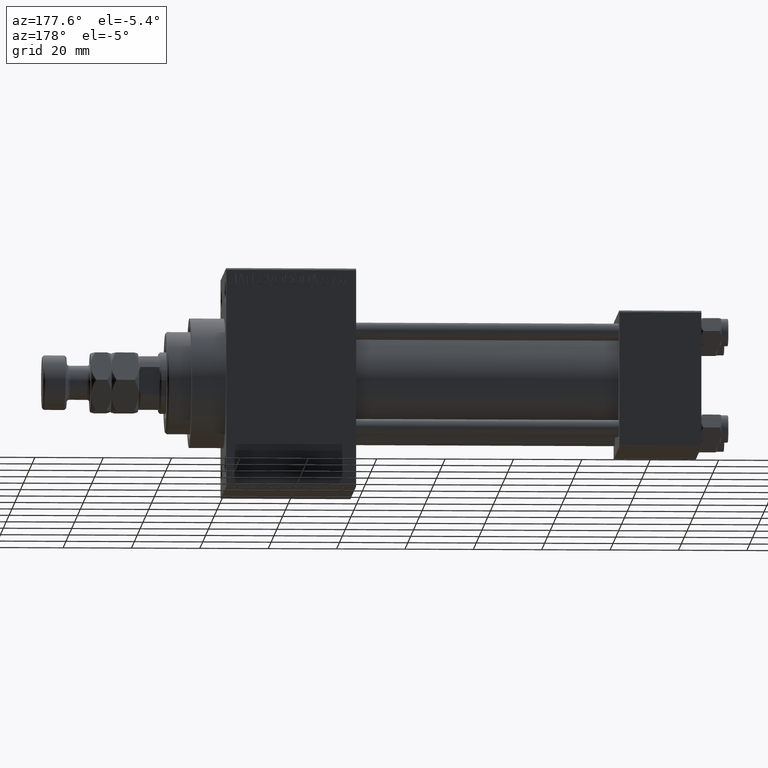
[diagram: clean part render]
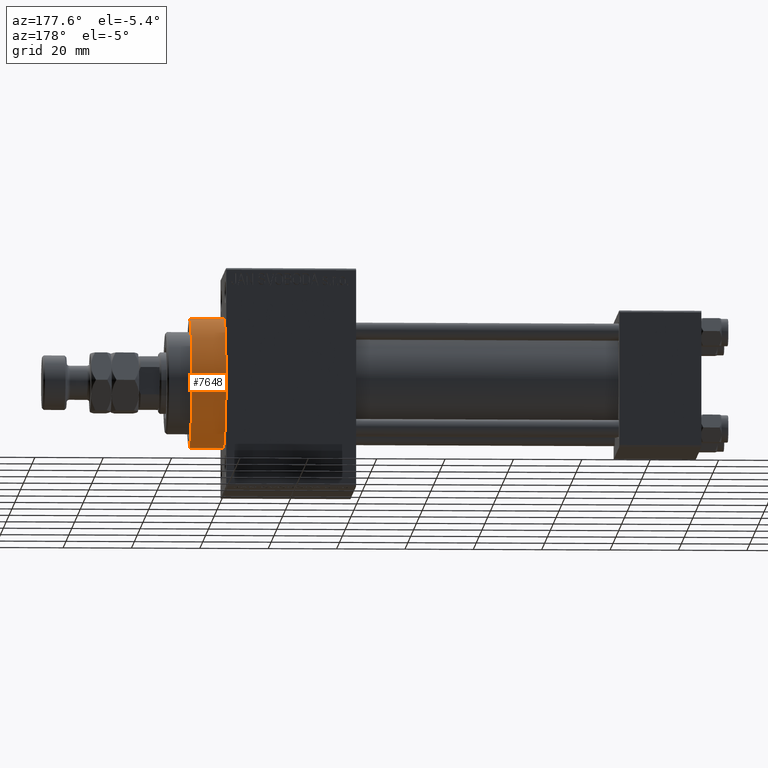
[diagram: same view with one face highlighted and labeled with its STEP entity id]
A machine part, auxiliary view. The second image highlights one B-rep face of the part: STEP entity #7648.
In plain terms, the highlighted cylindrical surface (partial cylindrical patch) has radius 19 mm, axis along (-1, -0, -0).
Its self-contained STEP definition (entity closure, byte-faithful):
#386 = EDGE_CURVE ( 'NONE', #44845, #37039, #42170, .T. ) ;
#1818 = CARTESIAN_POINT ( 'NONE',  ( 149.0000000000000284, 2.326828918379970970E-15, -19.00000000000000000 ) ) ;
#5097 = DIRECTION ( 'NONE',  ( 0.000000000000000000, 0.000000000000000000, -1.000000000000000000 ) ) ;
#6371 = FACE_OUTER_BOUND ( 'NONE', #28365, .T. ) ;
#7340 = CARTESIAN_POINT ( 'NONE',  ( 139.0000000000000000, 2.326828918379970970E-15, -19.00000000000000000 ) ) ;
#7424 = EDGE_CURVE ( 'NONE', #37039, #38414, #46565, .T. ) ;
#7648 = ADVANCED_FACE ( 'NONE', ( #6371 ), #24640, .T. ) ;
#8490 = AXIS2_PLACEMENT_3D ( 'NONE', #32761, #9835, #32997 ) ;
#9835 = DIRECTION ( 'NONE',  ( -1.000000000000000000, -0.000000000000000000, -0.000000000000000000 ) ) ;
#12205 = ORIENTED_EDGE ( 'NONE', *, *, #386, .F. ) ;
#12750 = CARTESIAN_POINT ( 'NONE',  ( 139.0000000000000000, 0.000000000000000000, 0.000000000000000000 ) ) ;
#19889 = CARTESIAN_POINT ( 'NONE',  ( 149.0000000000000284, 2.326828918379970970E-15, -19.00000000000000000 ) ) ;
#20936 = AXIS2_PLACEMENT_3D ( 'NONE', #27951, #47170, #43718 ) ;
#23904 = DIRECTION ( 'NONE',  ( -1.000000000000000000, -0.000000000000000000, -0.000000000000000000 ) ) ;
#24039 = ORIENTED_EDGE ( 'NONE', *, *, #7424, .F. ) ;
#24640 = CYLINDRICAL_SURFACE ( 'NONE', #8490, 19.00000000000000000 ) ;
#25414 = CIRCLE ( 'NONE', #36416, 19.00000000000000000 ) ;
#26812 = LINE ( 'NONE', #19889, #42688 ) ;
#27126 = CARTESIAN_POINT ( 'NONE',  ( 139.0000000000000000, 0.000000000000000000, 19.00000000000000000 ) ) ;
#27836 = CARTESIAN_POINT ( 'NONE',  ( 149.0000000000000284, 0.000000000000000000, 19.00000000000000000 ) ) ;
#27951 = CARTESIAN_POINT ( 'NONE',  ( 149.0000000000000284, 0.000000000000000000, 0.000000000000000000 ) ) ;
#28365 = EDGE_LOOP ( 'NONE', ( #12205, #46788, #47401, #24039 ) ) ;
#30192 = VERTEX_POINT ( 'NONE', #7340 ) ;
#30495 = VECTOR ( 'NONE', #23904, 1000.000000000000000 ) ;
#30842 = CARTESIAN_POINT ( 'NONE',  ( 149.0000000000000284, 0.000000000000000000, 19.00000000000000000 ) ) ;
#31247 = EDGE_CURVE ( 'NONE', #30192, #38414, #25414, .T. ) ;
#32761 = CARTESIAN_POINT ( 'NONE',  ( 149.0000000000000284, 0.000000000000000000, 0.000000000000000000 ) ) ;
#32997 = DIRECTION ( 'NONE',  ( 0.000000000000000000, 0.000000000000000000, 1.000000000000000000 ) ) ;
#34933 = DIRECTION ( 'NONE',  ( -1.000000000000000000, -0.000000000000000000, -0.000000000000000000 ) ) ;
#35927 = DIRECTION ( 'NONE',  ( 1.000000000000000000, 0.000000000000000000, 0.000000000000000000 ) ) ;
#36416 = AXIS2_PLACEMENT_3D ( 'NONE', #12750, #35927, #5097 ) ;
#37039 = VERTEX_POINT ( 'NONE', #30842 ) ;
#38414 = VERTEX_POINT ( 'NONE', #27126 ) ;
#40931 = EDGE_CURVE ( 'NONE', #44845, #30192, #26812, .T. ) ;
#42170 = CIRCLE ( 'NONE', #20936, 19.00000000000000000 ) ;
#42688 = VECTOR ( 'NONE', #34933, 1000.000000000000000 ) ;
#43718 = DIRECTION ( 'NONE',  ( 0.000000000000000000, 0.000000000000000000, -1.000000000000000000 ) ) ;
#44845 = VERTEX_POINT ( 'NONE', #1818 ) ;
#46565 = LINE ( 'NONE', #27836, #30495 ) ;
#46788 = ORIENTED_EDGE ( 'NONE', *, *, #40931, .T. ) ;
#47170 = DIRECTION ( 'NONE',  ( 1.000000000000000000, 0.000000000000000000, 0.000000000000000000 ) ) ;
#47401 = ORIENTED_EDGE ( 'NONE', *, *, #31247, .T. ) ;